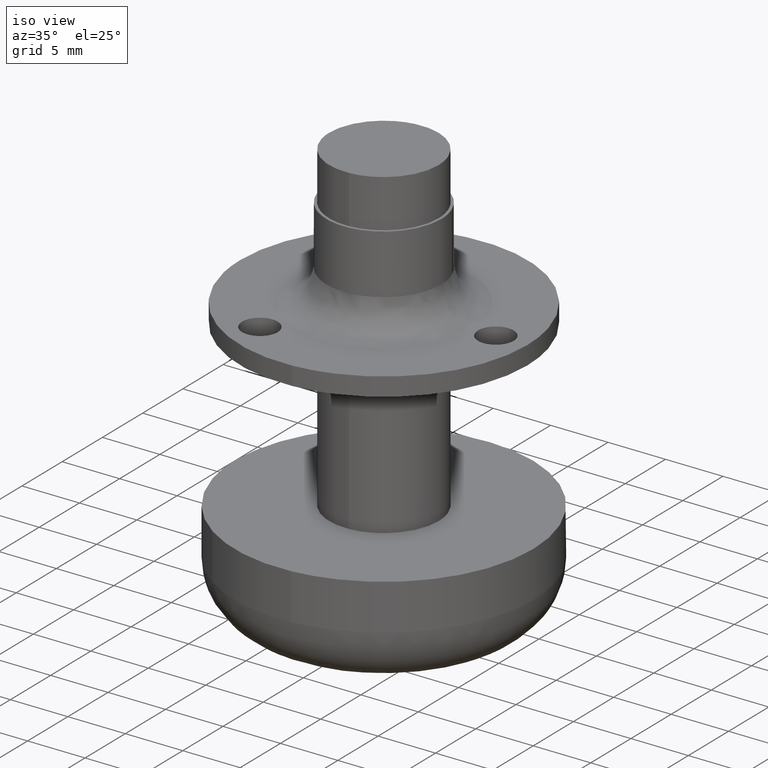
[diagram: clean part render]
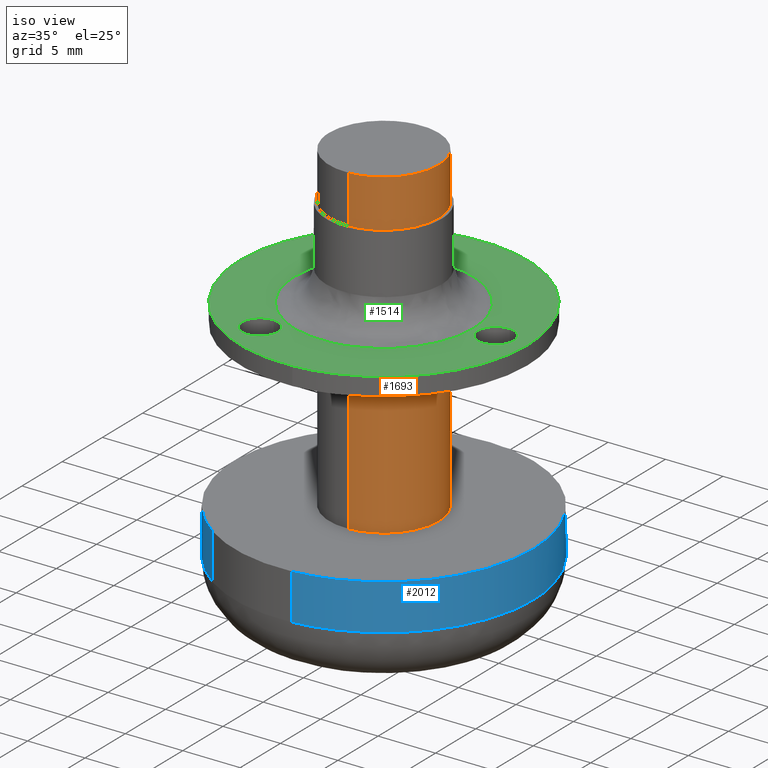
[diagram: same view with three faces highlighted in distinct colors, each labeled with its STEP entity id]
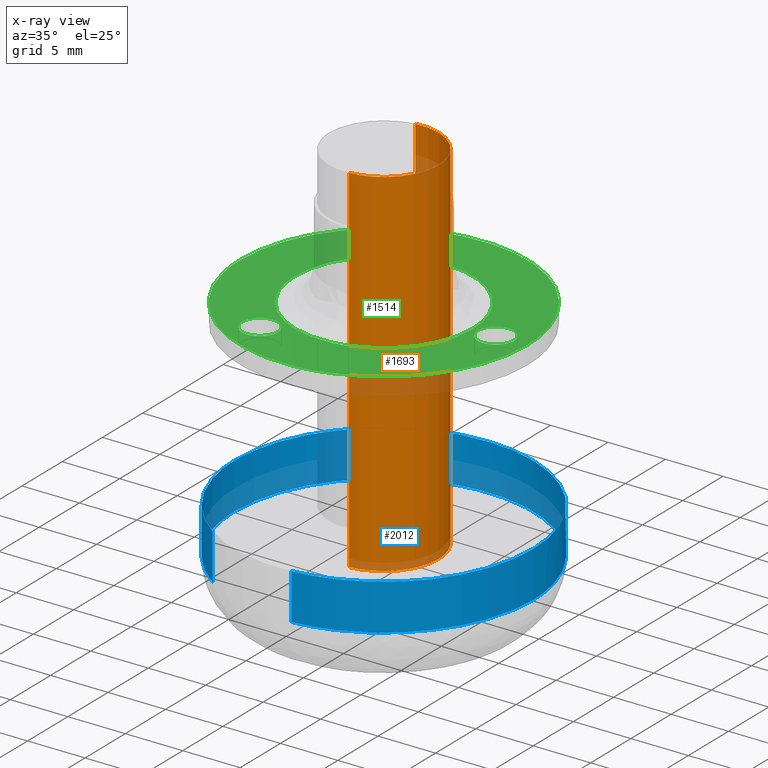
[diagram: x-ray of the same camera — body ghosted, the three highlighted faces saturated]
A machine part, iso view with three faces highlighted in distinct colors.
The next image is the same camera in x-ray (body ghosted, the three faces saturated) — at least one of them is partly hidden behind the body in this view.
Their STEP definitions:

[orange] entity #1693 — the highlighted face is a freeform B-spline surface patch.
#1591=CARTESIAN_POINT('',(-0.562138042552812,4.729207869306960,0.775000000000001));
#1592=CARTESIAN_POINT('',(-0.426790145138369,4.745296018573984,0.775000000000001));
#1593=CARTESIAN_POINT('',(-0.290743669534756,4.753616977484140,0.775000000000001));
#1594=CARTESIAN_POINT('',(4.462873307949383,5.044360647018896,0.775000000000001));
#1595=CARTESIAN_POINT('',(4.753616977484140,0.290743669534756,0.775000000000001));
#1596=CARTESIAN_POINT('',(5.044360647018896,-4.462873307949383,0.775000000000001));
#1597=CARTESIAN_POINT('',(0.290743669534756,-4.753616977484140,0.775000000000001));
#1598=CARTESIAN_POINT('',(-0.562138042552812,4.729207869306960,-31.794375000000002));
#1599=CARTESIAN_POINT('',(-0.426790145138369,4.745296018573984,-31.794374999999999));
#1600=CARTESIAN_POINT('',(-0.290743669534756,4.753616977484140,-31.794374999999999));
#1601=CARTESIAN_POINT('',(4.462873307949383,5.044360647018896,-31.794375000000002));
#1602=CARTESIAN_POINT('',(4.753616977484140,0.290743669534756,-31.794374999999999));
#1603=CARTESIAN_POINT('',(5.044360647018896,-4.462873307949383,-31.794375000000002));
#1604=CARTESIAN_POINT('',(0.290743669534756,-4.753616977484140,-31.794374999999999));
#1612=(BOUNDED_SURFACE()B_SPLINE_SURFACE(2,1,((#1591,#1598),(#1592,#1599),(#1593,#1600),(#1594,#1601),(#1595,#1602),(#1596,#1603),(#1597,#1604)),.UNSPECIFIED.,.F.,.F.,.U.)B_SPLINE_SURFACE_WITH_KNOTS((3,2,2,3),(2,2),(0.0,0.315630734528299,8.206399097735758,16.097167460943218),(0.0,32.569375000000008),.UNSPECIFIED.)GEOMETRIC_REPRESENTATION_ITEM()RATIONAL_B_SPLINE_SURFACE(((0.977505800795127,0.977505800795127),(0.988284271247462,0.988284271247462),(1.0,1.0),(0.707106781186548,0.707106781186548),(1.0,1.0),(0.707106781186548,0.707106781186548),(1.0,1.0)))REPRESENTATION_ITEM('')SURFACE());
#1613=CARTESIAN_POINT('',(-0.562131301755359,4.729208670543175,-31.000000000000011));
#1614=VERTEX_POINT('',#1613);
#1615=CARTESIAN_POINT('',(4.762500000000000,0.0,-31.0));
#1616=VERTEX_POINT('',#1615);
#1617=CARTESIAN_POINT('',(-0.562131301755359,4.729208670543176,-31.000000000000014));
#1618=CARTESIAN_POINT('',(-0.282051463812791,4.762500000000000,-30.999999999999996));
#1619=CARTESIAN_POINT('',(0.0,4.762500000000000,-31.0));
#1620=CARTESIAN_POINT('',(4.762500000000000,4.762500000000000,-31.000000000000007));
#1621=CARTESIAN_POINT('',(4.762500000000000,0.0,-31.0));
#1629=(BOUNDED_CURVE()B_SPLINE_CURVE(2,(#1617,#1618,#1619,#1620,#1621),.UNSPECIFIED.,.F.,.U.)B_SPLINE_CURVE_WITH_KNOTS((3,2,3),(0.229562714405197,0.250000000000000,0.500000000000000),.UNSPECIFIED.)CURVE()GEOMETRIC_REPRESENTATION_ITEM()RATIONAL_B_SPLINE_CURVE((0.956027226341810,0.976056230553313,1.0,0.707106781186548,1.0))REPRESENTATION_ITEM(''));
#1630=EDGE_CURVE('',#1614,#1616,#1629,.T.);
#1631=ORIENTED_EDGE('',*,*,#1630,.F.);
#1632=CARTESIAN_POINT('',(-0.562131385015081,4.729208660646734,-6.814628E-016));
#1633=VERTEX_POINT('',#1632);
#1634=CARTESIAN_POINT('',(-0.562131385015081,4.729208660646734,-6.814628E-016));
#1635=CARTESIAN_POINT('',(-0.562131301755359,4.729208670543175,-31.000000000000011));
#1636=QUASI_UNIFORM_CURVE('',1,(#1634,#1635),.UNSPECIFIED.,.F.,.U.);
#1637=EDGE_CURVE('',#1633,#1614,#1636,.T.);
#1638=ORIENTED_EDGE('',*,*,#1637,.F.);
#1639=CARTESIAN_POINT('',(4.762500000000000,0.0,0.0));
#1640=VERTEX_POINT('',#1639);
#1641=CARTESIAN_POINT('',(-0.562131385015081,4.729208660646734,-6.814628E-016));
#1642=CARTESIAN_POINT('',(-0.282051505882740,4.762500000000000,0.0));
#1643=CARTESIAN_POINT('',(0.0,4.762500000000000,0.0));
#1644=CARTESIAN_POINT('',(4.762500000000000,4.762500000000000,0.0));
#1645=CARTESIAN_POINT('',(4.762500000000000,0.0,0.0));
#1653=(BOUNDED_CURVE()B_SPLINE_CURVE(2,(#1641,#1642,#1643,#1644,#1645),.UNSPECIFIED.,.F.,.U.)B_SPLINE_CURVE_WITH_KNOTS((3,2,3),(0.229562711429822,0.250000000000000,0.500000000000000),.UNSPECIFIED.)CURVE()GEOMETRIC_REPRESENTATION_ITEM()RATIONAL_B_SPLINE_CURVE((0.956027220509941,0.976056227067445,1.0,0.707106781186548,1.0))REPRESENTATION_ITEM(''));
#1654=EDGE_CURVE('',#1633,#1640,#1653,.T.);
#1655=ORIENTED_EDGE('',*,*,#1654,.T.);
#1656=CARTESIAN_POINT('',(0.290737484362367,-4.753617355777411,-7.216450E-016));
#1657=VERTEX_POINT('',#1656);
#1658=CARTESIAN_POINT('',(4.762500000000000,0.0,0.0));
#1659=CARTESIAN_POINT('',(4.762500000000001,-4.480118483836638,0.0));
#1660=CARTESIAN_POINT('',(0.290737484362367,-4.753617355777411,-7.216450E-016));
#1668=(BOUNDED_CURVE()B_SPLINE_CURVE(2,(#1658,#1659,#1660),.UNSPECIFIED.,.F.,.U.)B_SPLINE_CURVE_WITH_KNOTS((3,3),(0.500000000000000,0.739333186751394),.UNSPECIFIED.)CURVE()GEOMETRIC_REPRESENTATION_ITEM()RATIONAL_B_SPLINE_CURVE((1.0,0.719603730254012,0.976072522840111))REPRESENTATION_ITEM(''));
#1669=EDGE_CURVE('',#1640,#1657,#1668,.T.);
#1670=ORIENTED_EDGE('',*,*,#1669,.T.);
#1671=CARTESIAN_POINT('',(0.290737407193583,-4.753617360497055,-30.999999999999989));
#1672=VERTEX_POINT('',#1671);
#1673=CARTESIAN_POINT('',(0.290737484362367,-4.753617355777411,-7.216450E-016));
#1674=CARTESIAN_POINT('',(0.290737407193583,-4.753617360497055,-30.999999999999989));
#1675=QUASI_UNIFORM_CURVE('',1,(#1673,#1674),.UNSPECIFIED.,.F.,.U.);
#1676=EDGE_CURVE('',#1657,#1672,#1675,.T.);
#1677=ORIENTED_EDGE('',*,*,#1676,.T.);
#1678=CARTESIAN_POINT('',(4.762500000000000,0.0,-31.0));
#1679=CARTESIAN_POINT('',(4.762500000000001,-4.480118556701420,-31.000000000000004));
#1680=CARTESIAN_POINT('',(0.290737407193583,-4.753617360497055,-30.999999999999989));
#1688=(BOUNDED_CURVE()B_SPLINE_CURVE(2,(#1678,#1679,#1680),.UNSPECIFIED.,.F.,.U.)B_SPLINE_CURVE_WITH_KNOTS((3,3),(0.500000000000000,0.739333189552468),.UNSPECIFIED.)CURVE()GEOMETRIC_REPRESENTATION_ITEM()RATIONAL_B_SPLINE_CURVE((1.0,0.719603726972350,0.976072528843356))REPRESENTATION_ITEM(''));
#1689=EDGE_CURVE('',#1616,#1672,#1688,.T.);
#1690=ORIENTED_EDGE('',*,*,#1689,.F.);
#1691=EDGE_LOOP('',(#1631,#1638,#1655,#1670,#1677,#1690));
#1692=FACE_OUTER_BOUND('',#1691,.T.);
#1693=ADVANCED_FACE('',(#1692),#1612,.T.);

[blue] entity #2012 — the highlighted face is a freeform B-spline surface patch.
#1846=CARTESIAN_POINT('',(-7.420923022373398,-10.673795084036808,-27.899999999998730));
#1847=CARTESIAN_POINT('',(-12.476795458972287,-7.158715408294145,-27.899999999998734));
#1848=CARTESIAN_POINT('',(-12.959925338530660,-1.019968244461983,-27.899999999998730));
#1849=CARTESIAN_POINT('',(-13.979893582992641,11.939957094068674,-27.899999999998734));
#1850=CARTESIAN_POINT('',(-1.019968244461983,12.959925338530660,-27.899999999998730));
#1851=CARTESIAN_POINT('',(11.939957094068674,13.979893582992641,-27.899999999998734));
#1852=CARTESIAN_POINT('',(12.959925338530660,1.019968244461983,-27.899999999998730));
#1853=CARTESIAN_POINT('',(13.979893582992641,-11.939957094068674,-27.899999999998734));
#1854=CARTESIAN_POINT('',(1.019968244461983,-12.959925338530660,-27.899999999998730));
#1855=CARTESIAN_POINT('',(-7.420923022373398,-10.673795084036808,-32.102500000051904));
#1856=CARTESIAN_POINT('',(-12.476795458972287,-7.158715408294145,-32.102500000051897));
#1857=CARTESIAN_POINT('',(-12.959925338530660,-1.019968244461983,-32.102500000051897));
#1858=CARTESIAN_POINT('',(-13.979893582992641,11.939957094068674,-32.102500000051911));
#1859=CARTESIAN_POINT('',(-1.019968244461983,12.959925338530660,-32.102500000051897));
#1860=CARTESIAN_POINT('',(11.939957094068674,13.979893582992641,-32.102500000051911));
#1861=CARTESIAN_POINT('',(12.959925338530660,1.019968244461983,-32.102500000051897));
#1862=CARTESIAN_POINT('',(13.979893582992641,-11.939957094068674,-32.102500000051911));
#1863=CARTESIAN_POINT('',(1.019968244461983,-12.959925338530660,-32.102500000051897));
#1871=(BOUNDED_SURFACE()B_SPLINE_SURFACE(2,1,((#1846,#1855),(#1847,#1856),(#1848,#1857),(#1849,#1858),(#1850,#1859),(#1851,#1860),(#1852,#1861),(#1853,#1862),(#1854,#1863)),.UNSPECIFIED.,.F.,.F.,.U.)B_SPLINE_SURFACE_WITH_KNOTS((3,2,2,2,3),(2,2),(0.0,12.061898936304519,33.601004179705463,55.140109423106402,76.679214666507320),(0.0,4.202500000053179),.UNSPECIFIED.)GEOMETRIC_REPRESENTATION_ITEM()RATIONAL_B_SPLINE_SURFACE(((0.855662221768731,0.855662221768731),(0.835979797464467,0.835979797464467),(1.0,1.0),(0.707106781186548,0.707106781186548),(1.0,1.0),(0.707106781186548,0.707106781186548),(1.0,1.0),(0.707106781186548,0.707106781186548),(1.0,1.0)))REPRESENTATION_ITEM('')SURFACE());
#1872=CARTESIAN_POINT('',(-7.420922211414788,-10.673795647853110,-32.000000000009173));
#1873=VERTEX_POINT('',#1872);
#1874=CARTESIAN_POINT('',(-12.998973574649600,-0.163358518484509,-32.000000000050612));
#1875=VERTEX_POINT('',#1874);
#1876=CARTESIAN_POINT('',(-7.420922211414788,-10.673795647853108,-32.000000000009173));
#1877=CARTESIAN_POINT('',(-12.914890403199166,-6.854132491527619,-32.000000000024230));
#1878=CARTESIAN_POINT('',(-12.998973574649593,-0.163358518484509,-32.000000000050605));
#1886=(BOUNDED_CURVE()B_SPLINE_CURVE(2,(#1876,#1877,#1878),.UNSPECIFIED.,.F.,.U.)B_SPLINE_CURVE_WITH_KNOTS((3,3),(0.848090585828457,0.997784295921704),.UNSPECIFIED.)CURVE()GEOMETRIC_REPRESENTATION_ITEM()RATIONAL_B_SPLINE_CURVE((0.860340233258638,0.822585875177073,0.994854295643956))REPRESENTATION_ITEM(''));
#1887=EDGE_CURVE('',#1873,#1875,#1886,.T.);
#1888=ORIENTED_EDGE('',*,*,#1887,.F.);
#1889=CARTESIAN_POINT('',(-7.420922251206202,-10.673795620188340,-28.0));
#1890=VERTEX_POINT('',#1889);
#1891=CARTESIAN_POINT('',(-7.420922251206202,-10.673795620188340,-28.0));
#1892=CARTESIAN_POINT('',(-7.420922211414788,-10.673795647853110,-32.000000000009173));
#1893=QUASI_UNIFORM_CURVE('',1,(#1891,#1892),.UNSPECIFIED.,.F.,.U.);
#1894=EDGE_CURVE('',#1890,#1873,#1893,.T.);
#1895=ORIENTED_EDGE('',*,*,#1894,.F.);
#1896=CARTESIAN_POINT('',(-13.0,0.0,-28.0));
#1897=VERTEX_POINT('',#1896);
#1898=CARTESIAN_POINT('',(-7.420922251206202,-10.673795620188336,-28.000000000000004));
#1899=CARTESIAN_POINT('',(-12.999999999999996,-6.794960265042517,-27.999999999999996));
#1900=CARTESIAN_POINT('',(-13.0,0.0,-28.0));
#1908=(BOUNDED_CURVE()B_SPLINE_CURVE(2,(#1898,#1899,#1900),.UNSPECIFIED.,.F.,.U.)B_SPLINE_CURVE_WITH_KNOTS((3,3),(0.848090586962412,1.0),.UNSPECIFIED.)CURVE()GEOMETRIC_REPRESENTATION_ITEM()RATIONAL_B_SPLINE_CURVE((0.860340232686647,0.822027052189434,1.0))REPRESENTATION_ITEM(''));
#1909=EDGE_CURVE('',#1890,#1897,#1908,.T.);
#1910=ORIENTED_EDGE('',*,*,#1909,.T.);
#1911=CARTESIAN_POINT('',(13.0,0.0,-28.0));
#1912=VERTEX_POINT('',#1911);
#1913=CARTESIAN_POINT('',(-13.0,0.0,-28.0));
#1914=CARTESIAN_POINT('',(-13.0,13.0,-28.000000000000004));
#1915=CARTESIAN_POINT('',(0.0,13.0,-28.0));
#1916=CARTESIAN_POINT('',(13.0,13.0,-28.000000000000004));
#1917=CARTESIAN_POINT('',(13.0,0.0,-28.0));
#1925=(BOUNDED_CURVE()B_SPLINE_CURVE(2,(#1913,#1914,#1915,#1916,#1917),.UNSPECIFIED.,.F.,.U.)B_SPLINE_CURVE_WITH_KNOTS((3,2,3),(0.0,0.250000000000000,0.500000000000000),.UNSPECIFIED.)CURVE()GEOMETRIC_REPRESENTATION_ITEM()RATIONAL_B_SPLINE_CURVE((1.0,0.707106781186547,1.0,0.707106781186547,1.0))REPRESENTATION_ITEM(''));
#1926=EDGE_CURVE('',#1897,#1912,#1925,.T.);
#1927=ORIENTED_EDGE('',*,*,#1926,.T.);
#1928=CARTESIAN_POINT('',(1.019966519713978,-12.959925474271040,-28.0));
#1929=VERTEX_POINT('',#1928);
#1930=CARTESIAN_POINT('',(13.0,0.0,-28.0));
#1931=CARTESIAN_POINT('',(13.0,-12.017077995772709,-27.999999999999993));
#1932=CARTESIAN_POINT('',(1.019966519713978,-12.959925474271040,-28.000000000000004));
#1940=(BOUNDED_CURVE()B_SPLINE_CURVE(2,(#1930,#1931,#1932),.UNSPECIFIED.,.F.,.U.)B_SPLINE_CURVE_WITH_KNOTS((3,3),(0.500000000000000,0.736331323446483),.UNSPECIFIED.)CURVE()GEOMETRIC_REPRESENTATION_ITEM()RATIONAL_B_SPLINE_CURVE((1.0,0.723120631877266,0.969723403782304))REPRESENTATION_ITEM(''));
#1941=EDGE_CURVE('',#1912,#1929,#1940,.T.);
#1942=ORIENTED_EDGE('',*,*,#1941,.T.);
#1943=CARTESIAN_POINT('',(1.019966498145250,-12.959925475968531,-32.000000000000007));
#1944=VERTEX_POINT('',#1943);
#1945=CARTESIAN_POINT('',(1.019966519713978,-12.959925474271040,-28.0));
#1946=CARTESIAN_POINT('',(1.019966498145250,-12.959925475968531,-32.000000000000007));
#1947=QUASI_UNIFORM_CURVE('',1,(#1945,#1946),.UNSPECIFIED.,.F.,.U.);
#1948=EDGE_CURVE('',#1929,#1944,#1947,.T.);
#1949=ORIENTED_EDGE('',*,*,#1948,.T.);
#1950=CARTESIAN_POINT('',(13.0,0.0,-32.0));
#1951=VERTEX_POINT('',#1950);
#1952=CARTESIAN_POINT('',(13.0,0.0,-32.0));
#1953=CARTESIAN_POINT('',(12.999999999999998,-12.017078015834130,-32.0));
#1954=CARTESIAN_POINT('',(1.019966498145264,-12.959925475968650,-31.999999999999996));
#1962=(BOUNDED_CURVE()B_SPLINE_CURVE(2,(#1952,#1953,#1954),.UNSPECIFIED.,.F.,.U.)B_SPLINE_CURVE_WITH_KNOTS((3,3),(0.500000000000000,0.736331323731778),.UNSPECIFIED.)CURVE()GEOMETRIC_REPRESENTATION_ITEM()RATIONAL_B_SPLINE_CURVE((1.0,0.723120631543022,0.969723404377694))REPRESENTATION_ITEM(''));
#1963=EDGE_CURVE('',#1951,#1944,#1962,.T.);
#1964=ORIENTED_EDGE('',*,*,#1963,.F.);
#1965=CARTESIAN_POINT('',(-0.906532270490859,12.968353759924909,-32.000000000050363));
#1966=VERTEX_POINT('',#1965);
#1967=CARTESIAN_POINT('',(-0.906532270490859,12.968353759924907,-32.000000000050363));
#1968=CARTESIAN_POINT('',(-0.453818506381399,13.000000000000005,-32.000000000000007));
#1969=CARTESIAN_POINT('',(0.0,13.0,-32.0));
#1970=CARTESIAN_POINT('',(13.0,13.0,-32.0));
#1971=CARTESIAN_POINT('',(13.0,0.0,-32.0));
#1979=(BOUNDED_CURVE()B_SPLINE_CURVE(2,(#1967,#1968,#1969,#1970,#1971),.UNSPECIFIED.,.F.,.U.)B_SPLINE_CURVE_WITH_KNOTS((3,2,3),(0.237833686534866,0.250000000000000,0.500000000000000),.UNSPECIFIED.)CURVE()GEOMETRIC_REPRESENTATION_ITEM()RATIONAL_B_SPLINE_CURVE((0.972879876386499,0.985746277152414,1.0,0.707106781186547,1.0))REPRESENTATION_ITEM(''));
#1980=EDGE_CURVE('',#1966,#1951,#1979,.T.);
#1981=ORIENTED_EDGE('',*,*,#1980,.F.);
#1982=CARTESIAN_POINT('',(-13.0,0.0,-32.0));
#1983=VERTEX_POINT('',#1982);
#1984=CARTESIAN_POINT('',(-13.0,0.0,-32.0));
#1985=CARTESIAN_POINT('',(-13.000000000000002,12.122979014447102,-32.000000000000007));
#1986=CARTESIAN_POINT('',(-0.906532270490859,12.968353759924911,-32.000000000050363));
#1994=(BOUNDED_CURVE()B_SPLINE_CURVE(2,(#1984,#1985,#1986),.UNSPECIFIED.,.F.,.U.)B_SPLINE_CURVE_WITH_KNOTS((3,3),(0.0,0.237833686534866),.UNSPECIFIED.)CURVE()GEOMETRIC_REPRESENTATION_ITEM()RATIONAL_B_SPLINE_CURVE((1.0,0.721360504034133,0.972879876386499))REPRESENTATION_ITEM(''));
#1995=EDGE_CURVE('',#1983,#1966,#1994,.T.);
#1996=ORIENTED_EDGE('',*,*,#1995,.F.);
#1997=CARTESIAN_POINT('',(-12.998973574649591,-0.163358518484509,-32.000000000050605));
#1998=CARTESIAN_POINT('',(-13.000000000000005,-0.081682483895492,-32.0));
#1999=CARTESIAN_POINT('',(-13.0,0.0,-32.0));
#2007=(BOUNDED_CURVE()B_SPLINE_CURVE(2,(#1997,#1998,#1999),.UNSPECIFIED.,.F.,.U.)B_SPLINE_CURVE_WITH_KNOTS((3,3),(0.997784295921703,1.0),.UNSPECIFIED.)CURVE()GEOMETRIC_REPRESENTATION_ITEM()RATIONAL_B_SPLINE_CURVE((0.994854295643955,0.997404141202278,1.0))REPRESENTATION_ITEM(''));
#2008=EDGE_CURVE('',#1875,#1983,#2007,.T.);
#2009=ORIENTED_EDGE('',*,*,#2008,.F.);
#2010=EDGE_LOOP('',(#1888,#1895,#1910,#1927,#1942,#1949,#1964,#1981,#1996,#2009));
#2011=FACE_OUTER_BOUND('',#2010,.T.);
#2012=ADVANCED_FACE('',(#2011),#1871,.T.);

[green] entity #1514 — the highlighted face is a freeform B-spline surface patch.
#62=CARTESIAN_POINT('',(-6.425000000000000,8.443747999999999,-12.080714999999961));
#63=VERTEX_POINT('',#62);
#64=CARTESIAN_POINT('',(-4.996611598470040,6.898526132720883,-12.080714999999961));
#65=VERTEX_POINT('',#64);
#66=CARTESIAN_POINT('',(-6.425000000000000,8.443747999999999,-12.080714999999961));
#67=CARTESIAN_POINT('',(-6.425000000000001,7.010942738100697,-12.080714999999959));
#68=CARTESIAN_POINT('',(-4.996611598470040,6.898526132720883,-12.080714999999959));
#76=(BOUNDED_CURVE()B_SPLINE_CURVE(2,(#66,#67,#68),.UNSPECIFIED.,.F.,.U.)B_SPLINE_CURVE_WITH_KNOTS((3,3),(0.0,0.236331300612381),.UNSPECIFIED.)CURVE()GEOMETRIC_REPRESENTATION_ITEM()RATIONAL_B_SPLINE_CURVE((1.0,0.723120658629080,0.969723356129271))REPRESENTATION_ITEM(''));
#77=EDGE_CURVE('',#63,#65,#76,.T.);
#118=CARTESIAN_POINT('',(-4.753388401529961,9.988969867279117,-12.080714999999961));
#119=VERTEX_POINT('',#118);
#125=CARTESIAN_POINT('',(-4.753388401529961,9.988969867279117,-12.080714999999964));
#126=CARTESIAN_POINT('',(-4.814100334045806,9.993747999999997,-12.080714999999955));
#127=CARTESIAN_POINT('',(-4.875000000000000,9.993747999999998,-12.080714999999961));
#128=CARTESIAN_POINT('',(-6.424999999999999,9.993747999999998,-12.080714999999957));
#129=CARTESIAN_POINT('',(-6.425000000000000,8.443747999999999,-12.080714999999961));
#137=(BOUNDED_CURVE()B_SPLINE_CURVE(2,(#125,#126,#127,#128,#129),.UNSPECIFIED.,.F.,.U.)B_SPLINE_CURVE_WITH_KNOTS((3,2,3),(0.736331300612381,0.750000000000000,1.0),.UNSPECIFIED.)CURVE()GEOMETRIC_REPRESENTATION_ITEM()RATIONAL_B_SPLINE_CURVE((0.969723356129272,0.983986122557467,1.0,0.707106781186547,1.0))REPRESENTATION_ITEM(''));
#138=EDGE_CURVE('',#119,#63,#137,.T.);
#161=CARTESIAN_POINT('',(-3.325000000000000,8.443747999999999,-12.080714999999961));
#162=VERTEX_POINT('',#161);
#163=CARTESIAN_POINT('',(-4.996611598470040,6.898526132720883,-12.080714999999957));
#164=CARTESIAN_POINT('',(-4.935899665954194,6.893747999999998,-12.080714999999959));
#165=CARTESIAN_POINT('',(-4.875000000000000,6.893747999999999,-12.080714999999961));
#166=CARTESIAN_POINT('',(-3.325000000000001,6.893748000000000,-12.080714999999957));
#167=CARTESIAN_POINT('',(-3.325000000000000,8.443747999999999,-12.080714999999961));
#175=(BOUNDED_CURVE()B_SPLINE_CURVE(2,(#163,#164,#165,#166,#167),.UNSPECIFIED.,.F.,.U.)B_SPLINE_CURVE_WITH_KNOTS((3,2,3),(0.236331300612381,0.250000000000000,0.500000000000000),.UNSPECIFIED.)CURVE()GEOMETRIC_REPRESENTATION_ITEM()RATIONAL_B_SPLINE_CURVE((0.969723356129271,0.983986122557467,1.0,0.707106781186547,1.0))REPRESENTATION_ITEM(''));
#176=EDGE_CURVE('',#65,#162,#175,.T.);
#178=CARTESIAN_POINT('',(-3.325000000000000,8.443747999999999,-12.080714999999961));
#179=CARTESIAN_POINT('',(-3.325000000000002,9.876553261899295,-12.080714999999959));
#180=CARTESIAN_POINT('',(-4.753388401529961,9.988969867279117,-12.080714999999957));
#188=(BOUNDED_CURVE()B_SPLINE_CURVE(2,(#178,#179,#180),.UNSPECIFIED.,.F.,.U.)B_SPLINE_CURVE_WITH_KNOTS((3,3),(0.500000000000000,0.736331300612380),.UNSPECIFIED.)CURVE()GEOMETRIC_REPRESENTATION_ITEM()RATIONAL_B_SPLINE_CURVE((1.0,0.723120658629081,0.969723356129270))REPRESENTATION_ITEM(''));
#189=EDGE_CURVE('',#162,#119,#188,.T.);
#244=CARTESIAN_POINT('',(-6.425000000000000,-8.443747999999999,-12.080714999999961));
#245=VERTEX_POINT('',#244);
#246=CARTESIAN_POINT('',(-4.996611598470039,-9.988969867279115,-12.080714999999961));
#247=VERTEX_POINT('',#246);
#248=CARTESIAN_POINT('',(-6.425000000000000,-8.443747999999999,-12.080714999999961));
#249=CARTESIAN_POINT('',(-6.425000000000002,-9.876553261899302,-12.080714999999959));
#250=CARTESIAN_POINT('',(-4.996611598470039,-9.988969867279115,-12.080714999999957));
#258=(BOUNDED_CURVE()B_SPLINE_CURVE(2,(#248,#249,#250),.UNSPECIFIED.,.F.,.U.)B_SPLINE_CURVE_WITH_KNOTS((3,3),(0.0,0.236331300612381),.UNSPECIFIED.)CURVE()GEOMETRIC_REPRESENTATION_ITEM()RATIONAL_B_SPLINE_CURVE((1.0,0.723120658629080,0.969723356129271))REPRESENTATION_ITEM(''));
#259=EDGE_CURVE('',#245,#247,#258,.T.);
#300=CARTESIAN_POINT('',(-4.753388401529961,-6.898526132720882,-12.080714999999961));
#301=VERTEX_POINT('',#300);
#307=CARTESIAN_POINT('',(-4.753388401529961,-6.898526132720882,-12.080714999999953));
#308=CARTESIAN_POINT('',(-4.814100334045806,-6.893747999999999,-12.080714999999957));
#309=CARTESIAN_POINT('',(-4.875000000000000,-6.893747999999999,-12.080714999999961));
#310=CARTESIAN_POINT('',(-6.424999999999999,-6.893748000000000,-12.080714999999957));
#311=CARTESIAN_POINT('',(-6.425000000000000,-8.443747999999999,-12.080714999999961));
#319=(BOUNDED_CURVE()B_SPLINE_CURVE(2,(#307,#308,#309,#310,#311),.UNSPECIFIED.,.F.,.U.)B_SPLINE_CURVE_WITH_KNOTS((3,2,3),(0.736331300612381,0.750000000000000,1.0),.UNSPECIFIED.)CURVE()GEOMETRIC_REPRESENTATION_ITEM()RATIONAL_B_SPLINE_CURVE((0.969723356129272,0.983986122557467,1.0,0.707106781186547,1.0))REPRESENTATION_ITEM(''));
#320=EDGE_CURVE('',#301,#245,#319,.T.);
#343=CARTESIAN_POINT('',(-3.325000000000000,-8.443747999999999,-12.080714999999961));
#344=VERTEX_POINT('',#343);
#345=CARTESIAN_POINT('',(-4.996611598470039,-9.988969867279115,-12.080714999999955));
#346=CARTESIAN_POINT('',(-4.935899665954194,-9.993747999999998,-12.080714999999959));
#347=CARTESIAN_POINT('',(-4.875000000000000,-9.993747999999998,-12.080714999999961));
#348=CARTESIAN_POINT('',(-3.325000000000001,-9.993747999999998,-12.080714999999957));
#349=CARTESIAN_POINT('',(-3.325000000000000,-8.443747999999999,-12.080714999999961));
#357=(BOUNDED_CURVE()B_SPLINE_CURVE(2,(#345,#346,#347,#348,#349),.UNSPECIFIED.,.F.,.U.)B_SPLINE_CURVE_WITH_KNOTS((3,2,3),(0.236331300612381,0.250000000000000,0.500000000000000),.UNSPECIFIED.)CURVE()GEOMETRIC_REPRESENTATION_ITEM()RATIONAL_B_SPLINE_CURVE((0.969723356129272,0.983986122557467,1.0,0.707106781186547,1.0))REPRESENTATION_ITEM(''));
#358=EDGE_CURVE('',#247,#344,#357,.T.);
#360=CARTESIAN_POINT('',(-3.325000000000000,-8.443747999999999,-12.080714999999961));
#361=CARTESIAN_POINT('',(-3.325000000000002,-7.010942738100702,-12.080714999999959));
#362=CARTESIAN_POINT('',(-4.753388401529961,-6.898526132720882,-12.080714999999957));
#370=(BOUNDED_CURVE()B_SPLINE_CURVE(2,(#360,#361,#362),.UNSPECIFIED.,.F.,.U.)B_SPLINE_CURVE_WITH_KNOTS((3,3),(0.500000000000000,0.736331300612380),.UNSPECIFIED.)CURVE()GEOMETRIC_REPRESENTATION_ITEM()RATIONAL_B_SPLINE_CURVE((1.0,0.723120658629081,0.969723356129270))REPRESENTATION_ITEM(''));
#371=EDGE_CURVE('',#344,#301,#370,.T.);
#426=CARTESIAN_POINT('',(8.200000000000001,0.0,-12.080714999999961));
#427=VERTEX_POINT('',#426);
#428=CARTESIAN_POINT('',(9.628388401529961,-1.545221867279117,-12.080714999999961));
#429=VERTEX_POINT('',#428);
#430=CARTESIAN_POINT('',(8.200000000000001,0.0,-12.080714999999961));
#431=CARTESIAN_POINT('',(8.200000000000001,-1.432805261899303,-12.080714999999959));
#432=CARTESIAN_POINT('',(9.628388401529961,-1.545221867279117,-12.080714999999959));
#440=(BOUNDED_CURVE()B_SPLINE_CURVE(2,(#430,#431,#432),.UNSPECIFIED.,.F.,.U.)B_SPLINE_CURVE_WITH_KNOTS((3,3),(0.0,0.236331300612381),.UNSPECIFIED.)CURVE()GEOMETRIC_REPRESENTATION_ITEM()RATIONAL_B_SPLINE_CURVE((1.0,0.723120658629080,0.969723356129271))REPRESENTATION_ITEM(''));
#441=EDGE_CURVE('',#427,#429,#440,.T.);
#482=CARTESIAN_POINT('',(9.871611598470039,1.545221867279117,-12.080714999999961));
#483=VERTEX_POINT('',#482);
#489=CARTESIAN_POINT('',(9.871611598470039,1.545221867279117,-12.080714999999953));
#490=CARTESIAN_POINT('',(9.810899665954194,1.550000000000000,-12.080714999999957));
#491=CARTESIAN_POINT('',(9.750000000000000,1.550000000000000,-12.080714999999961));
#492=CARTESIAN_POINT('',(8.200000000000001,1.550000000000001,-12.080714999999957));
#493=CARTESIAN_POINT('',(8.200000000000001,0.0,-12.080714999999961));
#501=(BOUNDED_CURVE()B_SPLINE_CURVE(2,(#489,#490,#491,#492,#493),.UNSPECIFIED.,.F.,.U.)B_SPLINE_CURVE_WITH_KNOTS((3,2,3),(0.736331300612381,0.750000000000000,1.0),.UNSPECIFIED.)CURVE()GEOMETRIC_REPRESENTATION_ITEM()RATIONAL_B_SPLINE_CURVE((0.969723356129272,0.983986122557467,1.0,0.707106781186547,1.0))REPRESENTATION_ITEM(''));
#502=EDGE_CURVE('',#483,#427,#501,.T.);
#525=CARTESIAN_POINT('',(11.300000000000001,0.0,-12.080714999999961));
#526=VERTEX_POINT('',#525);
#527=CARTESIAN_POINT('',(9.628388401529961,-1.545221867279117,-12.080714999999957));
#528=CARTESIAN_POINT('',(9.689100334045806,-1.550000000000000,-12.080714999999959));
#529=CARTESIAN_POINT('',(9.750000000000000,-1.550000000000000,-12.080714999999961));
#530=CARTESIAN_POINT('',(11.300000000000001,-1.550000000000001,-12.080714999999957));
#531=CARTESIAN_POINT('',(11.300000000000001,0.0,-12.080714999999961));
#539=(BOUNDED_CURVE()B_SPLINE_CURVE(2,(#527,#528,#529,#530,#531),.UNSPECIFIED.,.F.,.U.)B_SPLINE_CURVE_WITH_KNOTS((3,2,3),(0.236331300612381,0.250000000000000,0.500000000000000),.UNSPECIFIED.)CURVE()GEOMETRIC_REPRESENTATION_ITEM()RATIONAL_B_SPLINE_CURVE((0.969723356129271,0.983986122557467,1.0,0.707106781186547,1.0))REPRESENTATION_ITEM(''));
#540=EDGE_CURVE('',#429,#526,#539,.T.);
#542=CARTESIAN_POINT('',(11.300000000000001,0.0,-12.080714999999961));
#543=CARTESIAN_POINT('',(11.299999999999999,1.432805261899297,-12.080714999999959));
#544=CARTESIAN_POINT('',(9.871611598470039,1.545221867279118,-12.080714999999957));
#552=(BOUNDED_CURVE()B_SPLINE_CURVE(2,(#542,#543,#544),.UNSPECIFIED.,.F.,.U.)B_SPLINE_CURVE_WITH_KNOTS((3,3),(0.500000000000000,0.736331300612380),.UNSPECIFIED.)CURVE()GEOMETRIC_REPRESENTATION_ITEM()RATIONAL_B_SPLINE_CURVE((1.0,0.723120658629081,0.969723356129270))REPRESENTATION_ITEM(''));
#553=EDGE_CURVE('',#526,#483,#552,.T.);
#612=CARTESIAN_POINT('',(-1.475424716273004,12.412619461926649,-12.080714999999950));
#613=VERTEX_POINT('',#612);
#614=CARTESIAN_POINT('',(12.500000000000000,0.0,-12.080715000000000));
#615=VERTEX_POINT('',#614);
#616=CARTESIAN_POINT('',(-1.475424716273005,12.412619461926653,-12.080714999999948));
#617=CARTESIAN_POINT('',(-0.740299870176180,12.500000000000004,-12.080715000000001));
#618=CARTESIAN_POINT('',(0.0,12.500000000000000,-12.080715000000000));
#619=CARTESIAN_POINT('',(12.499999999999998,12.499999999999998,-12.080715000000000));
#620=CARTESIAN_POINT('',(12.500000000000000,0.0,-12.080715000000000));
#628=(BOUNDED_CURVE()B_SPLINE_CURVE(2,(#616,#617,#618,#619,#620),.UNSPECIFIED.,.F.,.U.)B_SPLINE_CURVE_WITH_KNOTS((3,2,3),(0.229562517315645,0.250000000000000,0.500000000000000),.UNSPECIFIED.)CURVE()GEOMETRIC_REPRESENTATION_ITEM()RATIONAL_B_SPLINE_CURVE((0.956026840037698,0.976055999648541,1.0,0.707106781186547,1.0))REPRESENTATION_ITEM(''));
#629=EDGE_CURVE('',#613,#615,#628,.T.);
#631=CARTESIAN_POINT('',(0.763101643999968,-12.476685292211970,-12.080714999999911));
#632=VERTEX_POINT('',#631);
#633=CARTESIAN_POINT('',(12.500000000000000,0.0,-12.080715000000000));
#634=CARTESIAN_POINT('',(12.499999999999998,-11.758830652045498,-12.080715000000001));
#635=CARTESIAN_POINT('',(0.763101643999968,-12.476685292211965,-12.080714999999902));
#643=(BOUNDED_CURVE()B_SPLINE_CURVE(2,(#633,#634,#635),.UNSPECIFIED.,.F.,.U.)B_SPLINE_CURVE_WITH_KNOTS((3,3),(0.500000000000000,0.739333032775185),.UNSPECIFIED.)CURVE()GEOMETRIC_REPRESENTATION_ITEM()RATIONAL_B_SPLINE_CURVE((1.0,0.719603910648362,0.976072192839358))REPRESENTATION_ITEM(''));
#644=EDGE_CURVE('',#615,#632,#643,.T.);
#711=CARTESIAN_POINT('',(-12.500000000000000,0.0,-12.080715000000000));
#712=VERTEX_POINT('',#711);
#713=CARTESIAN_POINT('',(-12.500000000000000,0.0,-12.080715000000000));
#714=CARTESIAN_POINT('',(-12.499999999999998,11.102184471962548,-12.080715000000000));
#715=CARTESIAN_POINT('',(-1.475424716273005,12.412619461926653,-12.080714999999948));
#723=(BOUNDED_CURVE()B_SPLINE_CURVE(2,(#713,#714,#715),.UNSPECIFIED.,.F.,.U.)B_SPLINE_CURVE_WITH_KNOTS((3,3),(0.0,0.229562517315645),.UNSPECIFIED.)CURVE()GEOMETRIC_REPRESENTATION_ITEM()RATIONAL_B_SPLINE_CURVE((1.0,0.731050781538007,0.956026840037698))REPRESENTATION_ITEM(''));
#724=EDGE_CURVE('',#712,#613,#723,.T.);
#758=CARTESIAN_POINT('',(0.763101643999968,-12.476685292211965,-12.080714999999902));
#759=CARTESIAN_POINT('',(0.381906983989356,-12.500000000000004,-12.080714999999998));
#760=CARTESIAN_POINT('',(0.0,-12.500000000000000,-12.080715000000000));
#761=CARTESIAN_POINT('',(-12.499999999999998,-12.499999999999998,-12.080715000000000));
#762=CARTESIAN_POINT('',(-12.500000000000000,0.0,-12.080715000000000));
#770=(BOUNDED_CURVE()B_SPLINE_CURVE(2,(#758,#759,#760,#761,#762),.UNSPECIFIED.,.F.,.U.)B_SPLINE_CURVE_WITH_KNOTS((3,2,3),(0.739333032775185,0.750000000000000,1.0),.UNSPECIFIED.)CURVE()GEOMETRIC_REPRESENTATION_ITEM()RATIONAL_B_SPLINE_CURVE((0.976072192839358,0.987502870538185,1.0,0.707106781186547,1.0))REPRESENTATION_ITEM(''));
#771=EDGE_CURVE('',#632,#712,#770,.T.);
#1361=CARTESIAN_POINT('',(7.749999999959968,2.046831E-016,-12.080715000000000));
#1362=VERTEX_POINT('',#1361);
#1376=CARTESIAN_POINT('',(-7.750000000000000,0.0,-12.080715000000000));
#1377=VERTEX_POINT('',#1376);
#1378=CARTESIAN_POINT('',(-7.750000000000000,0.0,-12.080715000000000));
#1379=CARTESIAN_POINT('',(-7.750000000000001,7.750000000000001,-12.080715000000001));
#1380=CARTESIAN_POINT('',(0.0,7.750000000000000,-12.080715000000000));
#1381=CARTESIAN_POINT('',(7.750000000000001,7.750000000000001,-12.080715000000001));
#1382=CARTESIAN_POINT('',(7.749999999959968,2.046831E-016,-12.080715000000000));
#1390=(BOUNDED_CURVE()B_SPLINE_CURVE(2,(#1378,#1379,#1380,#1381,#1382),.UNSPECIFIED.,.F.,.U.)B_SPLINE_CURVE_WITH_KNOTS((3,2,3),(0.0,0.250000000000000,0.500000000000000),.UNSPECIFIED.)CURVE()GEOMETRIC_REPRESENTATION_ITEM()RATIONAL_B_SPLINE_CURVE((1.0,0.707106781186548,1.0,0.707106781186548,1.0))REPRESENTATION_ITEM(''));
#1391=EDGE_CURVE('',#1377,#1362,#1390,.T.);
#1393=CARTESIAN_POINT('',(0.894847777338014,-7.698165200433881,-12.080715000000000));
#1394=VERTEX_POINT('',#1393);
#1395=CARTESIAN_POINT('',(0.894847777338014,-7.698165200433881,-12.080715000000003));
#1396=CARTESIAN_POINT('',(0.448925175578996,-7.749999999999999,-12.080715000000005));
#1397=CARTESIAN_POINT('',(0.0,-7.750000000000000,-12.080715000000000));
#1398=CARTESIAN_POINT('',(-7.750000000000001,-7.750000000000001,-12.080715000000001));
#1399=CARTESIAN_POINT('',(-7.750000000000000,0.0,-12.080715000000000));
#1407=(BOUNDED_CURVE()B_SPLINE_CURVE(2,(#1395,#1396,#1397,#1398,#1399),.UNSPECIFIED.,.F.,.U.)B_SPLINE_CURVE_WITH_KNOTS((3,2,3),(0.729999999996935,0.750000000000000,1.0),.UNSPECIFIED.)CURVE()GEOMETRIC_REPRESENTATION_ITEM()RATIONAL_B_SPLINE_CURVE((0.956886118184627,0.976568542491333,1.0,0.707106781186548,1.0))REPRESENTATION_ITEM(''));
#1408=EDGE_CURVE('',#1394,#1377,#1407,.T.);
#1445=CARTESIAN_POINT('',(7.749999999959968,2.046831E-016,-12.080715000000000));
#1446=CARTESIAN_POINT('',(7.750000000000000,-6.901310681282919,-12.080715000000003));
#1447=CARTESIAN_POINT('',(0.894847777338014,-7.698165200433881,-12.080715000000005));
#1455=(BOUNDED_CURVE()B_SPLINE_CURVE(2,(#1445,#1446,#1447),.UNSPECIFIED.,.F.,.U.)B_SPLINE_CURVE_WITH_KNOTS((3,3),(0.500000000000000,0.729999999996935),.UNSPECIFIED.)CURVE()GEOMETRIC_REPRESENTATION_ITEM()RATIONAL_B_SPLINE_CURVE((1.0,0.730538238695215,0.956886118184627))REPRESENTATION_ITEM(''));
#1456=EDGE_CURVE('',#1362,#1394,#1455,.T.);
#1480=CARTESIAN_POINT('',(-13.748749951545150,-13.748446416702111,-12.080715000000000));
#1481=CARTESIAN_POINT('',(13.748750622097401,-13.748446416702111,-12.080715000000000));
#1482=CARTESIAN_POINT('',(-13.748749951545150,13.748522636141621,-12.080715000000000));
#1483=CARTESIAN_POINT('',(13.748750622097401,13.748522636141621,-12.080715000000000));
#1484=B_SPLINE_SURFACE_WITH_KNOTS('',1,1,((#1480,#1482),(#1481,#1483)),.UNSPECIFIED.,.F.,.F.,.U.,(2,2),(2,2),(0.0,27.497500573642551),(0.0,27.496969052843731),.UNSPECIFIED.);
#1485=ORIENTED_EDGE('',*,*,#771,.F.);
#1486=ORIENTED_EDGE('',*,*,#644,.F.);
#1487=ORIENTED_EDGE('',*,*,#629,.F.);
#1488=ORIENTED_EDGE('',*,*,#724,.F.);
#1489=EDGE_LOOP('',(#1485,#1486,#1487,#1488));
#1490=FACE_OUTER_BOUND('',#1489,.T.);
#1491=ORIENTED_EDGE('',*,*,#1391,.T.);
#1492=ORIENTED_EDGE('',*,*,#1456,.T.);
#1493=ORIENTED_EDGE('',*,*,#1408,.T.);
#1494=EDGE_LOOP('',(#1491,#1492,#1493));
#1495=FACE_BOUND('',#1494,.T.);
#1496=ORIENTED_EDGE('',*,*,#553,.F.);
#1497=ORIENTED_EDGE('',*,*,#540,.F.);
#1498=ORIENTED_EDGE('',*,*,#441,.F.);
#1499=ORIENTED_EDGE('',*,*,#502,.F.);
#1500=EDGE_LOOP('',(#1496,#1497,#1498,#1499));
#1501=FACE_BOUND('',#1500,.T.);
#1502=ORIENTED_EDGE('',*,*,#371,.F.);
#1503=ORIENTED_EDGE('',*,*,#358,.F.);
#1504=ORIENTED_EDGE('',*,*,#259,.F.);
#1505=ORIENTED_EDGE('',*,*,#320,.F.);
#1506=EDGE_LOOP('',(#1502,#1503,#1504,#1505));
#1507=FACE_BOUND('',#1506,.T.);
#1508=ORIENTED_EDGE('',*,*,#189,.F.);
#1509=ORIENTED_EDGE('',*,*,#176,.F.);
#1510=ORIENTED_EDGE('',*,*,#77,.F.);
#1511=ORIENTED_EDGE('',*,*,#138,.F.);
#1512=EDGE_LOOP('',(#1508,#1509,#1510,#1511));
#1513=FACE_BOUND('',#1512,.T.);
#1514=ADVANCED_FACE('',(#1490,#1495,#1501,#1507,#1513),#1484,.T.);